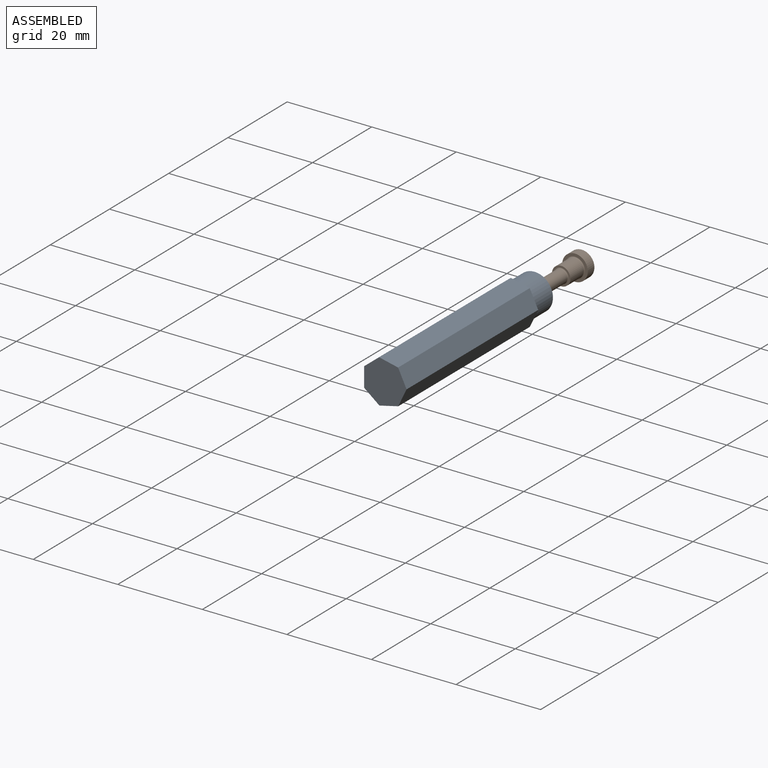
[diagram: assembled view]
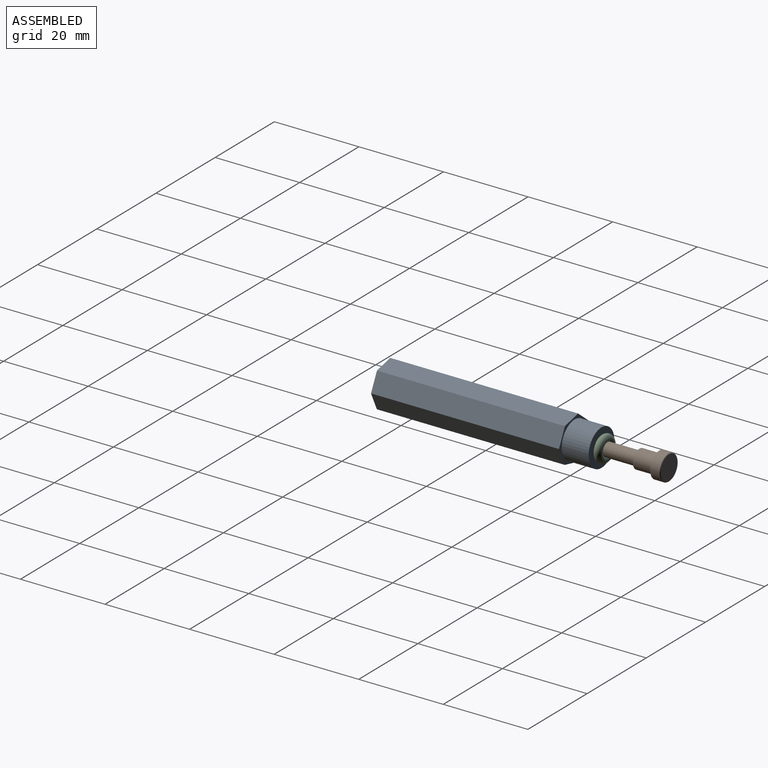
[diagram: assembled view, second angle]
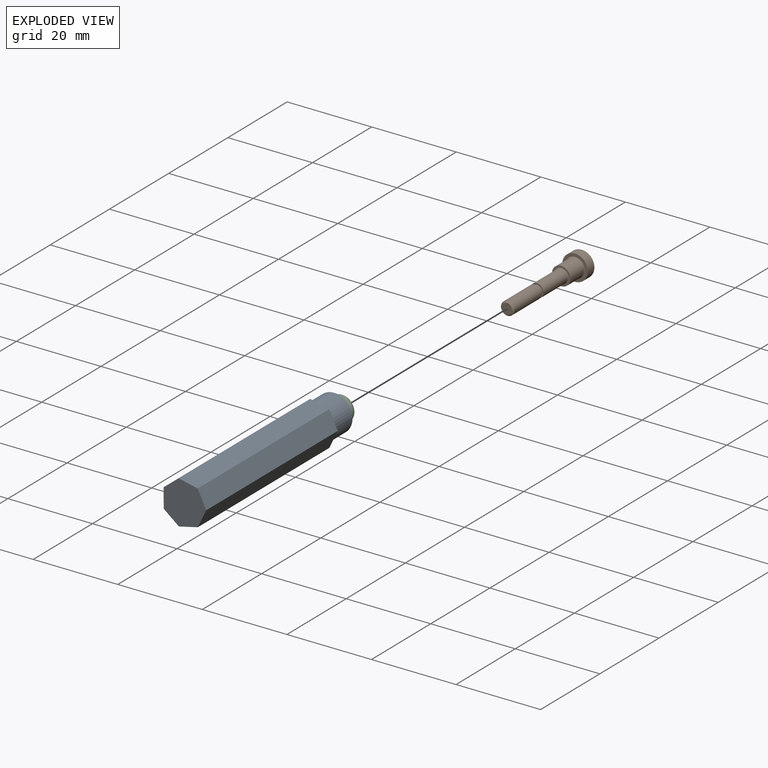
[diagram: exploded view]
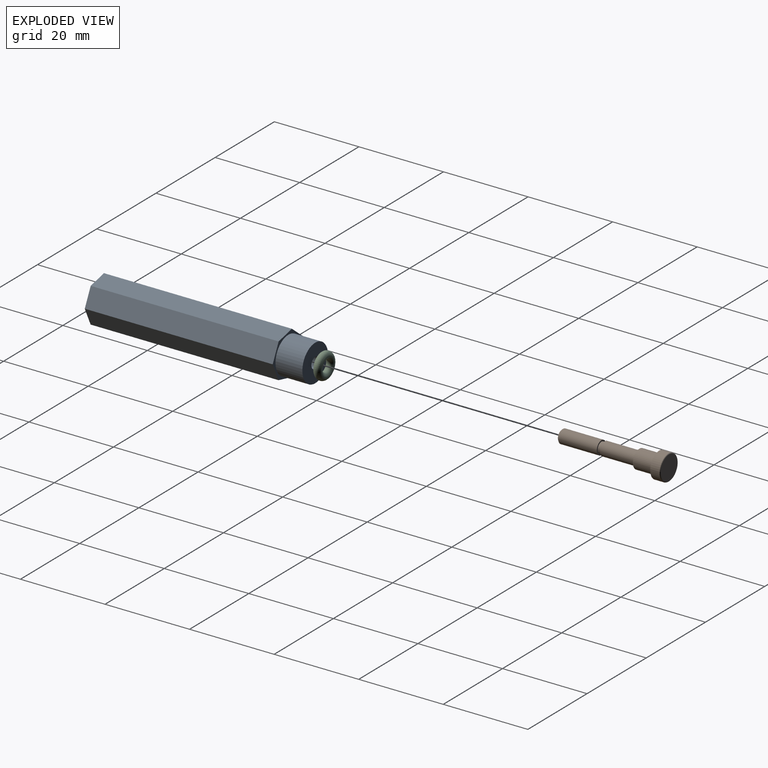
[diagram: exploded view, second angle]
ASSEMBLY  parts=3 mates=2
PART A: 13 faces, bbox 10.1x50.8x10.3 mm
  f0: plane 8.68x8.68mm, normal (0,1,0), area 53.9mm2, adj f2,f3
  f1: cone r=0mm half-angle=59deg, axis (0,1,0), area 6.1mm2, adj f2
  f2: cylinder r=1.29mm len=10.16mm, axis (0,1,0), area 82.3mm2, adj f0,f1
  f3: cylinder r=4.34mm len=8.68mm, axis (0,1,0), area 173.1mm2, adj f0,f4
  f4: plane 10.31x10.06mm, normal (0,1,0), area 17.3mm2, adj f3,f6,f7,f8,f9,f10,f11,f12
  f5: plane 10.31x10.06mm, normal (0,-1,0), area 76.5mm2, adj f6,f7,f8,f9,f10,f11,f12
  f6: plane 44.45x4.14mm, normal (0.9,0,-0.43), area 203.9mm2, adj f4,f5,f7,f12
  f7: plane 44.45x4.47mm, normal (0.23,0,-0.97), area 203.9mm2, adj f4,f5,f6,f8
  f8: plane 44.45x3.6mm, normal (-0.62,0,-0.78), area 203.9mm2, adj f4,f5,f7,f9
  f9: plane 44.45x4.59mm, normal (-1,0,0), area 203.9mm2, adj f4,f5,f8,f10
  f10: plane 44.45x3.58mm, normal (-0.63,0,0.78), area 203.9mm2, adj f4,f5,f9,f11
  f11: plane 44.45x4.48mm, normal (0.22,0,0.98), area 203.9mm2, adj f4,f5,f10,f12
  f12: plane 44.45x4.13mm, normal (0.9,0,0.44), area 203.9mm2, adj f4,f5,f6,f11
PART B: 15 faces, bbox 6.5x6.5x25.4 mm
  f0: cylinder r=3.02mm len=6.05mm, axis (0,0,1), area 41mm2, adj f1,f14
  f1: plane 6.05x6.05mm, normal (0,0,-1), area 10.8mm2, adj f0,f2
  f2: torus R=2.39mm, axis (0,0,1), area 4.5mm2, adj f1,f3
  f3: cylinder r=2.18mm len=4.47mm, axis (0,0,1), area 61.4mm2, adj f2,f4
  f4: plane 4.37x4.37mm, normal (0,0,-1), area 4.9mm2, adj f3,f5
  f5: torus R=1.79mm, axis (0,0,1), area 3.3mm2, adj f4,f6
  f6: cylinder r=1.59mm len=8mm, axis (0,0,1), area 79.8mm2, adj f5,f7
  f7: plane 3.18x3.18mm, normal (0,0,-1), area 2.9mm2, adj f6,f8
  f8: cylinder r=1.27mm len=2.54mm, axis (0,0,1), area 6.1mm2, adj f7,f9
  f9: plane 3.18x3.18mm, normal (0,0,1), area 2.9mm2, adj f8,f10
  f10: cylinder r=1.59mm len=9.1mm, axis (0,0,1), area 90.7mm2, adj f9,f11
  f11: cone r=1.59mm half-angle=43.6deg, axis (0,0,1), area 3.8mm2, adj f10,f12
  f12: plane 2.6x2.6mm, normal (0,0,-1), area 5.3mm2, adj f11
  f13: plane 5.64x5.64mm, normal (0,0,1), area 25mm2, adj f14
  f14: torus R=2.82mm, axis (0,0,1), area 5.9mm2, adj f0,f13
PART C: 1 faces, bbox 6.6x1.8x6.6 mm
  f0: torus R=2.17mm, axis (0,-1,0), area 76.2mm2
PLACE A t=(-3.1,5.23,2.34)mm
PLACE B rot(axis=(-0.58,-0.58,-0.58),120deg) t=(-3.1,21.23,2.34)mm
PLACE C t=(-3.1,5.99,2.34)mm
MATE fastened C.f0 <-> B.f0  axis (0,-1,0) through (-3.1,5.99,2.34)mm
MATE fastened B.f0 <-> A.f3  axis (0,1,0) through (-3.1,5.23,2.34)mm
